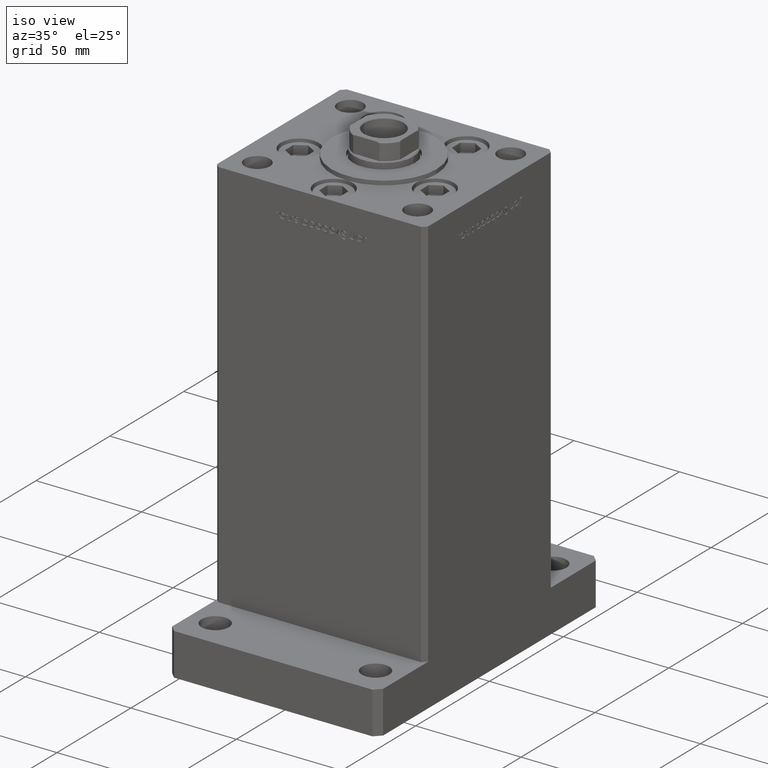
[diagram: clean part render]
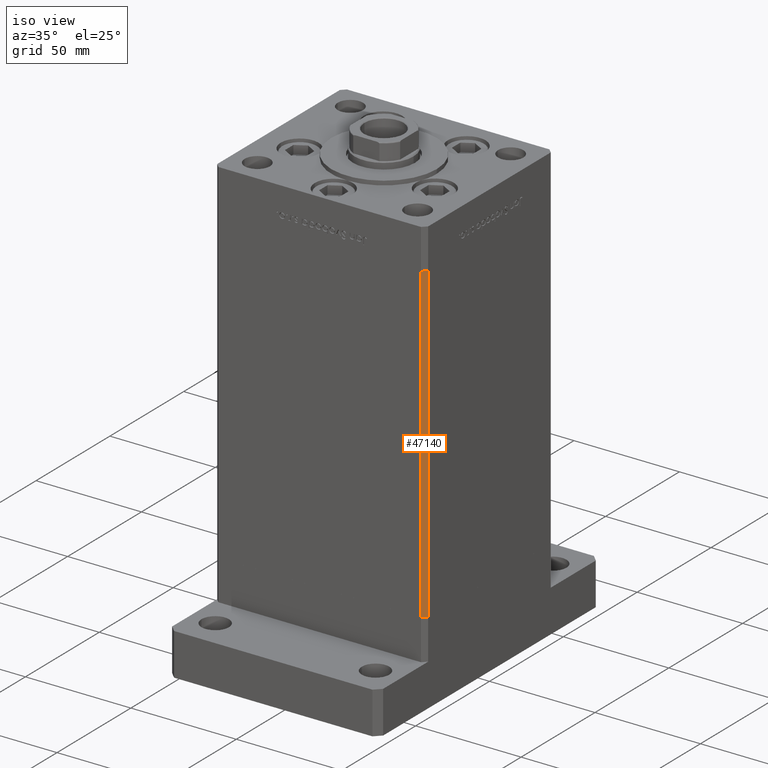
[diagram: same view with one face highlighted and labeled with its STEP entity id]
A machine part, iso view. The second image highlights one B-rep face of the part: STEP entity #47140.
In plain terms, the highlighted planar face has unit normal (0.7071, -0.7071, 0).
Its self-contained STEP definition (entity closure, byte-faithful):
#5341 = PLANE ( 'NONE',  #29635 ) ;
#7489 = EDGE_CURVE ( 'NONE', #18221, #37527, #24201, .T. ) ;
#7774 = DIRECTION ( 'NONE',  ( -0.000000000000000000, -0.000000000000000000, -1.000000000000000000 ) ) ;
#11602 = CARTESIAN_POINT ( 'NONE',  ( 49.99999999999998579, -41.49999999999999289, 148.5000000000000000 ) ) ;
#12736 = EDGE_LOOP ( 'NONE', ( #33747, #47311, #19337, #24767 ) ) ;
#12995 = EDGE_CURVE ( 'NONE', #39967, #21621, #23809, .T. ) ;
#13448 = EDGE_CURVE ( 'NONE', #39967, #18221, #48817, .T. ) ;
#13498 = LINE ( 'NONE', #47426, #33858 ) ;
#15781 = CARTESIAN_POINT ( 'NONE',  ( 47.99999999999998579, -43.50000000000000000, 148.5000000000000000 ) ) ;
#17303 = FACE_OUTER_BOUND ( 'NONE', #12736, .T. ) ;
#18221 = VERTEX_POINT ( 'NONE', #44728 ) ;
#19337 = ORIENTED_EDGE ( 'NONE', *, *, #13448, .T. ) ;
#21381 = CARTESIAN_POINT ( 'NONE',  ( 49.99999999999998579, -41.49999999999999289, 148.5000000000000000 ) ) ;
#21621 = VERTEX_POINT ( 'NONE', #32357 ) ;
#22839 = CARTESIAN_POINT ( 'NONE',  ( 47.99999999999998579, -43.50000000000000000, 0.000000000000000000 ) ) ;
#23809 = LINE ( 'NONE', #24077, #43686 ) ;
#24077 = CARTESIAN_POINT ( 'NONE',  ( 49.99999999999998579, -41.49999999999999289, 148.5000000000000000 ) ) ;
#24201 = LINE ( 'NONE', #15781, #28886 ) ;
#24767 = ORIENTED_EDGE ( 'NONE', *, *, #7489, .T. ) ;
#25446 = DIRECTION ( 'NONE',  ( 0.7071067811865475727, -0.7071067811865475727, 0.000000000000000000 ) ) ;
#28886 = VECTOR ( 'NONE', #31809, 1000.000000000000000 ) ;
#29635 = AXIS2_PLACEMENT_3D ( 'NONE', #21381, #25446, #30569 ) ;
#30569 = DIRECTION ( 'NONE',  ( 0.7071067811865474617, 0.7071067811865474617, 0.000000000000000000 ) ) ;
#31809 = DIRECTION ( 'NONE',  ( -0.000000000000000000, -0.000000000000000000, -1.000000000000000000 ) ) ;
#32357 = CARTESIAN_POINT ( 'NONE',  ( 49.99999999999998579, -41.49999999999999289, 0.000000000000000000 ) ) ;
#33747 = ORIENTED_EDGE ( 'NONE', *, *, #43529, .F. ) ;
#33858 = VECTOR ( 'NONE', #38736, 1000.000000000000114 ) ;
#37527 = VERTEX_POINT ( 'NONE', #22839 ) ;
#38736 = DIRECTION ( 'NONE',  ( -0.7071067811865474617, -0.7071067811865474617, 0.000000000000000000 ) ) ;
#39967 = VERTEX_POINT ( 'NONE', #40959 ) ;
#40660 = DIRECTION ( 'NONE',  ( -0.7071067811865474617, -0.7071067811865474617, 0.000000000000000000 ) ) ;
#40959 = CARTESIAN_POINT ( 'NONE',  ( 49.99999999999998579, -41.49999999999999289, 148.5000000000000000 ) ) ;
#43529 = EDGE_CURVE ( 'NONE', #21621, #37527, #13498, .T. ) ;
#43686 = VECTOR ( 'NONE', #7774, 1000.000000000000000 ) ;
#44728 = CARTESIAN_POINT ( 'NONE',  ( 47.99999999999998579, -43.50000000000000000, 148.5000000000000000 ) ) ;
#47140 = ADVANCED_FACE ( 'NONE', ( #17303 ), #5341, .T. ) ;
#47311 = ORIENTED_EDGE ( 'NONE', *, *, #12995, .F. ) ;
#47426 = CARTESIAN_POINT ( 'NONE',  ( 49.99999999999998579, -41.49999999999999289, 0.000000000000000000 ) ) ;
#48817 = LINE ( 'NONE', #11602, #52371 ) ;
#52371 = VECTOR ( 'NONE', #40660, 1000.000000000000114 ) ;